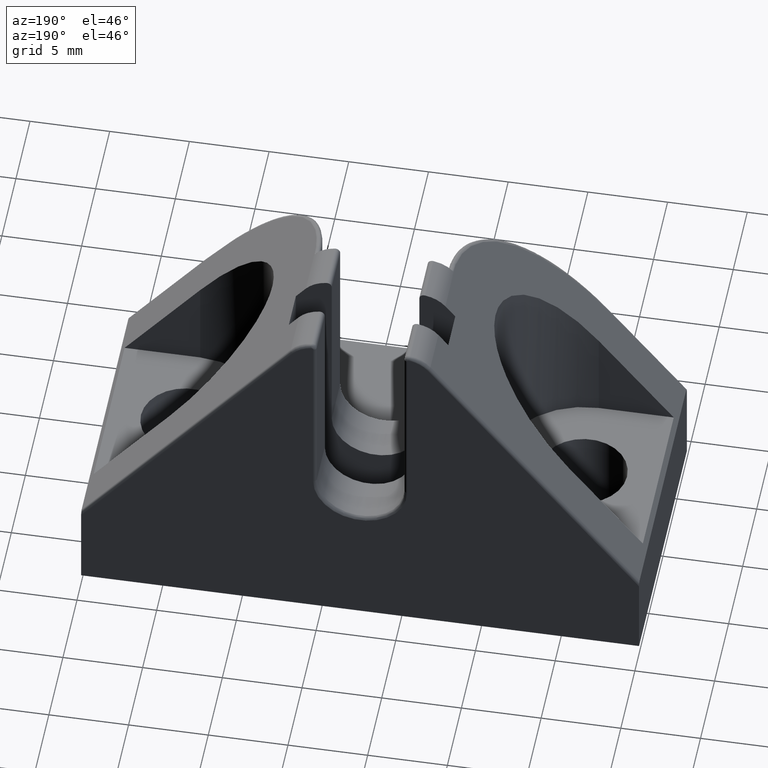
[diagram: clean part render]
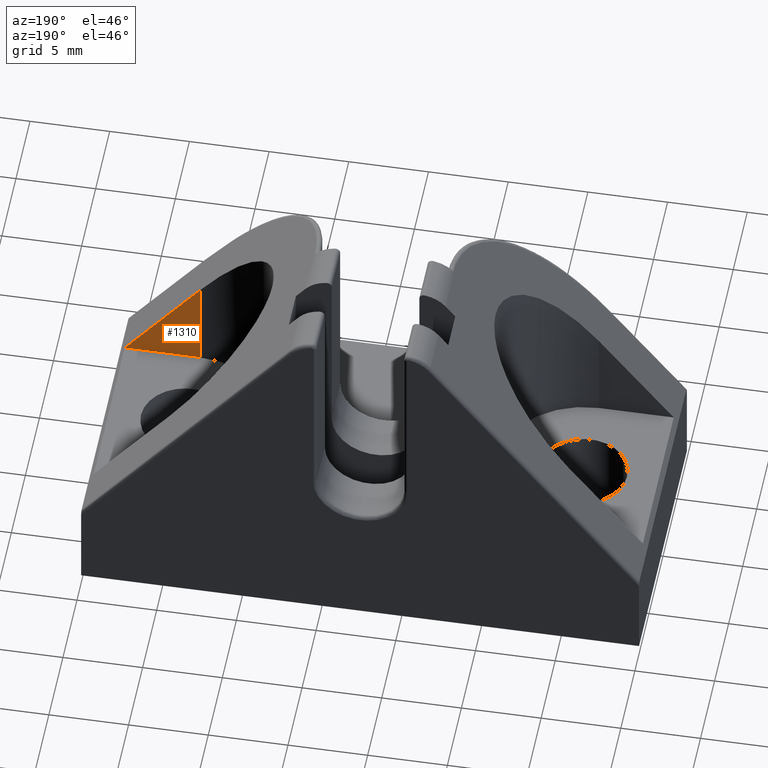
[diagram: same view with one face highlighted and labeled with its STEP entity id]
A machine part, auxiliary view. The second image highlights one B-rep face of the part: STEP entity #1310.
In plain terms, the highlighted planar face has unit normal (0, -1, 0).
Its self-contained STEP definition (entity closure, byte-faithful):
#69=PLANE('',#1421);
#101=FACE_OUTER_BOUND('',#182,.T.);
#182=EDGE_LOOP('',(#905,#906,#907));
#354=LINE('',#2001,#456);
#355=LINE('',#2005,#457);
#356=LINE('',#2006,#458);
#456=VECTOR('',#1607,5.98896145125763);
#457=VECTOR('',#1612,7.63920764803686);
#458=VECTOR('',#1613,4.74234480243422);
#560=VERTEX_POINT('',#1998);
#561=VERTEX_POINT('',#2000);
#562=VERTEX_POINT('',#2004);
#692=EDGE_CURVE('',#561,#560,#354,.T.);
#694=EDGE_CURVE('',#560,#562,#355,.T.);
#695=EDGE_CURVE('',#561,#562,#356,.T.);
#905=ORIENTED_EDGE('',*,*,#692,.T.);
#906=ORIENTED_EDGE('',*,*,#694,.T.);
#907=ORIENTED_EDGE('',*,*,#695,.F.);
#1310=ADVANCED_FACE('',(#101),#69,.F.);
#1421=AXIS2_PLACEMENT_3D('',#2003,#1610,#1611);
#1607=DIRECTION('',(0.,0.,1.));
#1610=DIRECTION('center_axis',(0.,-1.,0.));
#1611=DIRECTION('ref_axis',(0.,0.,-1.));
#1612=DIRECTION('',(0.620790142241115,0.,-0.783976784921757));
#1613=DIRECTION('',(1.,0.,0.));
#1998=CARTESIAN_POINT('',(0.,-5.49989999997797,11.9889595044842));
#2000=CARTESIAN_POINT('',(0.,-5.49989999997797,5.99999805322659));
#2001=CARTESIAN_POINT('',(0.,-5.49989999997797,5.99999805322659));
#2003=CARTESIAN_POINT('Origin',(0.,-5.49989999997797,5.99999805322659));
#2004=CARTESIAN_POINT('',(4.74234480243422,-5.49989999997797,5.99999805322659));
#2005=CARTESIAN_POINT('',(0.,-5.49989999997797,11.9889595044842));
#2006=CARTESIAN_POINT('',(0.,-5.49989999997797,5.99999805322659));